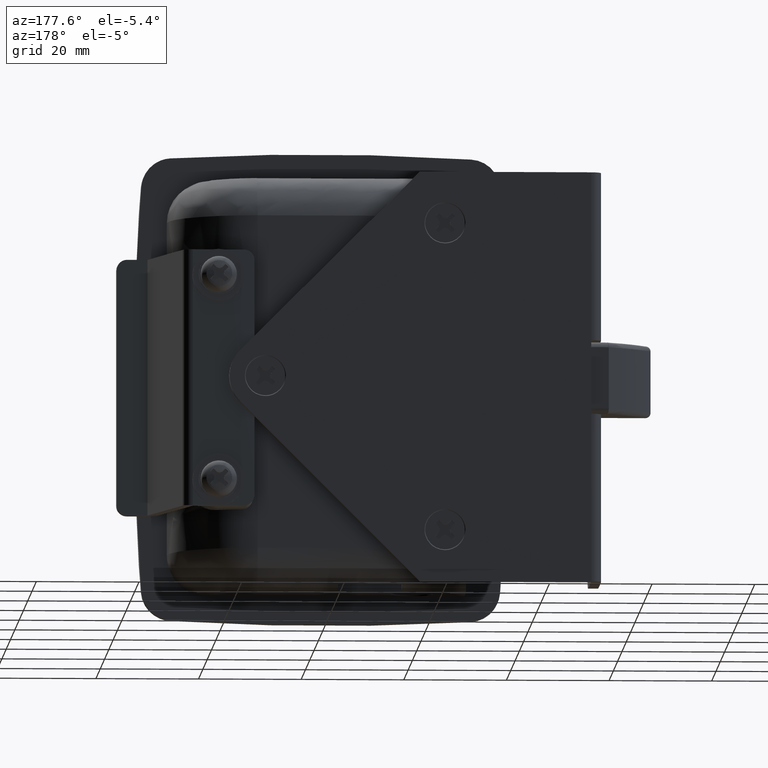
[diagram: clean part render]
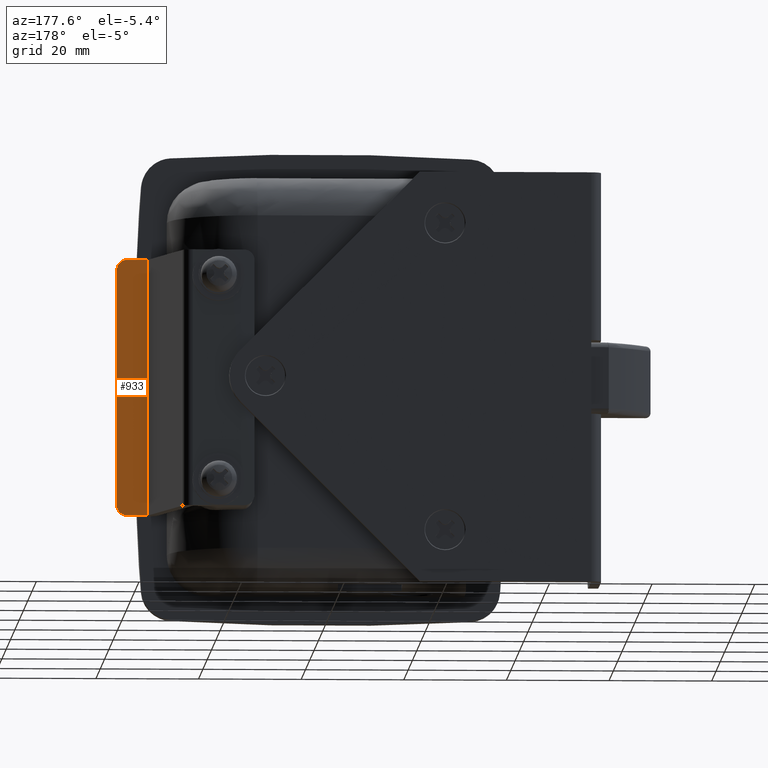
[diagram: same view with one face highlighted and labeled with its STEP entity id]
A machine part, auxiliary view. The second image highlights one B-rep face of the part: STEP entity #933.
In plain terms, the highlighted face is a freeform B-spline surface patch.
Its self-contained STEP definition (entity closure, byte-faithful):
#542=CARTESIAN_POINT('',(39.875829858339799,-26.104962699350001,23.000200000000000));
#543=VERTEX_POINT('',#542);
#549=CARTESIAN_POINT('',(37.876065749432513,-26.135679286499901,25.000200000000000));
#550=VERTEX_POINT('',#549);
#551=CARTESIAN_POINT('',(37.876065749432513,-26.135679286499901,25.000200000000000));
#552=CARTESIAN_POINT('',(38.121512912471587,-26.131909192246969,25.000423469042278));
#553=CARTESIAN_POINT('',(38.513991217575210,-26.125880684179769,24.926951972101051));
#554=CARTESIAN_POINT('',(38.996153165497311,-26.118474625921230,24.676717927772660));
#555=CARTESIAN_POINT('',(39.311012615514890,-26.113638351636059,24.411741941585479));
#556=CARTESIAN_POINT('',(39.546986320661027,-26.110013770693278,24.116830766229771));
#557=CARTESIAN_POINT('',(39.792564347429781,-26.106241666359679,23.670835352072029));
#558=CARTESIAN_POINT('',(39.876203032044472,-26.104956967362661,23.278439920112859));
#559=CARTESIAN_POINT('',(39.875829858339799,-26.104962699350001,23.000200000000000));
#560=B_SPLINE_CURVE_WITH_KNOTS('',3,(#551,#552,#553,#554,#555,#556,#557,#558,#559),.UNSPECIFIED.,.F.,.U.,(4,1,1,1,1,1,4),(0.000000172459084,0.736327973223462,1.178149603366443,1.619901172010401,1.963522057771744,2.307163631333511,3.141671488679166),.UNSPECIFIED.);
#561=EDGE_CURVE('',#550,#543,#560,.T.);
#601=CARTESIAN_POINT('',(37.876065749432513,-26.135679286499901,-25.0));
#602=VERTEX_POINT('',#601);
#608=CARTESIAN_POINT('',(39.875829858339799,-26.104962699350001,-23.0));
#609=VERTEX_POINT('',#608);
#610=CARTESIAN_POINT('',(39.875829858339799,-26.104962699350001,-23.0));
#611=CARTESIAN_POINT('',(39.875939895286422,-26.104961009170950,-23.212721238640970));
#612=CARTESIAN_POINT('',(39.817857009063083,-26.105853168415369,-23.572628595708490));
#613=CARTESIAN_POINT('',(39.625873509565217,-26.108802055170401,-23.991700131533989));
#614=CARTESIAN_POINT('',(39.389720783032878,-26.112429385900398,-24.327052683679032));
#615=CARTESIAN_POINT('',(39.043570651676752,-26.117746288343788,-24.656808220547759));
#616=CARTESIAN_POINT('',(38.514085277134321,-26.125879239415070,-24.931533303236279));
#617=CARTESIAN_POINT('',(38.088757495009858,-26.132412318906031,-25.000095628771199));
#618=CARTESIAN_POINT('',(37.876065749432513,-26.135679286499901,-25.0));
#619=B_SPLINE_CURVE_WITH_KNOTS('',3,(#610,#611,#612,#613,#614,#615,#616,#617,#618),.UNSPECIFIED.,.F.,.U.,(4,1,1,1,1,1,4),(0.000000172450590,0.638143503489616,1.079959536990136,1.374509465161194,1.865360594399749,2.503528157640864,3.141671488679196),.UNSPECIFIED.);
#620=EDGE_CURVE('',#609,#602,#619,.T.);
#794=CARTESIAN_POINT('',(33.876537531617899,-26.197112460799701,25.000200000000000));
#795=VERTEX_POINT('',#794);
#796=CARTESIAN_POINT('',(37.876065749432513,-26.135679286499901,25.000200000000000));
#797=CARTESIAN_POINT('',(33.876537531617899,-26.197112460799701,25.000200000000000));
#798=QUASI_UNIFORM_CURVE('',1,(#796,#797),.UNSPECIFIED.,.F.,.U.);
#799=EDGE_CURVE('',#550,#795,#798,.T.);
#855=CARTESIAN_POINT('',(33.876537531617899,-26.197112460799701,-25.0));
#856=VERTEX_POINT('',#855);
#862=CARTESIAN_POINT('',(37.876065749432513,-26.135679286499901,-25.0));
#863=CARTESIAN_POINT('',(33.876537531617899,-26.197112460799701,-25.0));
#864=QUASI_UNIFORM_CURVE('',1,(#862,#863),.UNSPECIFIED.,.F.,.U.);
#865=EDGE_CURVE('',#602,#856,#864,.T.);
#902=CARTESIAN_POINT('',(33.876537531617899,-26.197112460799701,-25.0));
#903=CARTESIAN_POINT('',(33.876537531617899,-26.197112460799701,25.000200000000000));
#904=QUASI_UNIFORM_CURVE('',1,(#902,#903),.UNSPECIFIED.,.F.,.U.);
#905=EDGE_CURVE('',#856,#795,#904,.T.);
#916=CARTESIAN_POINT('',(40.175496356894882,-26.100359790398009,-27.497509893089909));
#917=CARTESIAN_POINT('',(33.576872642198410,-26.201715345035229,-27.497509893089909));
#918=CARTESIAN_POINT('',(40.175496356894882,-26.100359790398009,27.497711234199780));
#919=CARTESIAN_POINT('',(33.576872642198410,-26.201715345035229,27.497711234199780));
#920=B_SPLINE_SURFACE_WITH_KNOTS('',1,1,((#916,#918),(#917,#919)),.UNSPECIFIED.,.F.,.F.,.U.,(2,2),(2,2),(0.0,6.599402084780894),(0.0,54.995221127289703),.UNSPECIFIED.);
#921=CARTESIAN_POINT('',(39.875829858339799,-26.104962699350001,-23.0));
#922=CARTESIAN_POINT('',(39.875829858339799,-26.104962699350001,23.000200000000000));
#923=QUASI_UNIFORM_CURVE('',1,(#921,#922),.UNSPECIFIED.,.F.,.U.);
#924=EDGE_CURVE('',#609,#543,#923,.T.);
#925=ORIENTED_EDGE('',*,*,#924,.F.);
#926=ORIENTED_EDGE('',*,*,#620,.T.);
#927=ORIENTED_EDGE('',*,*,#865,.T.);
#928=ORIENTED_EDGE('',*,*,#905,.T.);
#929=ORIENTED_EDGE('',*,*,#799,.F.);
#930=ORIENTED_EDGE('',*,*,#561,.T.);
#931=EDGE_LOOP('',(#925,#926,#927,#928,#929,#930));
#932=FACE_OUTER_BOUND('',#931,.T.);
#933=ADVANCED_FACE('',(#932),#920,.T.);